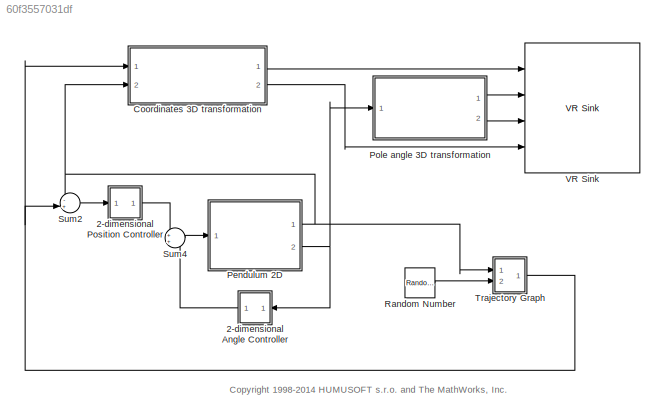
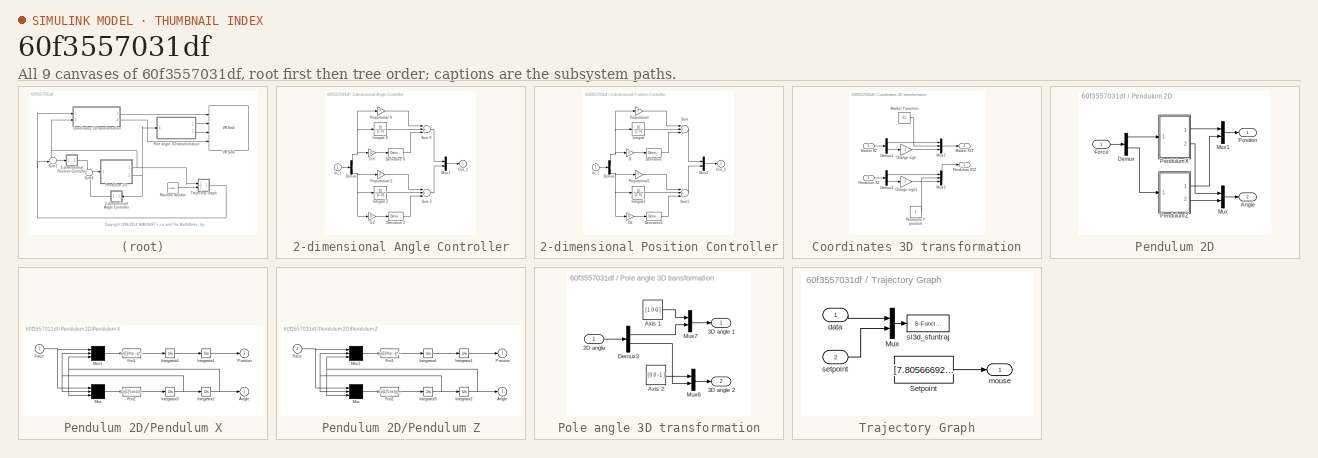
[diagram: thumbnail index - all 9 canvases of the model, root first then tree order]
MODEL slx_60f3557031df
KIND model
CONFIG AbsTol = auto
CONFIG FixedStep = 0.01
CONFIG MaxStep = 0.02
CONFIG MinStep = auto
CONFIG RelTol = 1e-3
CONFIG SampleTimeConstraint = Unconstrained
CONFIG Solver = ode5
CONFIG SolverMode = SingleTasking
CONFIG SolverName = ode5
CONFIG StartTime = 0.0
CONFIG StopTime = Inf
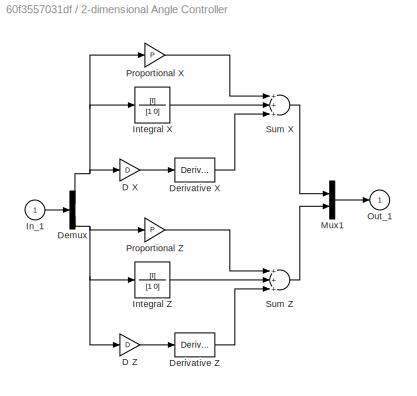
BLOCK [SubSystem] 2-dimensional Angle Controller
  Ports = [1, 1]
  RequestExecContextInheritance = off
  Variant = off
BLOCK [Gain] 2-dimensional Angle Controller/D X
  Gain = D
BLOCK [Gain] 2-dimensional Angle Controller/D Z
  Gain = D
BLOCK [Demux] 2-dimensional Angle Controller/Demux
  Outputs = 2
  Ports = [1, 2]
BLOCK [Derivative] 2-dimensional Angle Controller/Derivative X
BLOCK [Derivative] 2-dimensional Angle Controller/Derivative Z
BLOCK [Inport] 2-dimensional Angle Controller/In_1
  IconDisplay = Port number
BLOCK [TransferFcn] 2-dimensional Angle Controller/Integral X
  Denominator = [1 0]
  Numerator = [I]
BLOCK [TransferFcn] 2-dimensional Angle Controller/Integral Z
  Denominator = [1 0]
  Numerator = [I]
BLOCK [Mux] 2-dimensional Angle Controller/Mux1
  DisplayOption = bar
  Inputs = 2
  Ports = [2, 1]
BLOCK [Outport] 2-dimensional Angle Controller/Out_1
  IconDisplay = Port number
  InitialOutput = 0
BLOCK [Gain] 2-dimensional Angle Controller/Proportional X
  Gain = P
BLOCK [Gain] 2-dimensional Angle Controller/Proportional Z
  Gain = P
BLOCK [Sum] 2-dimensional Angle Controller/Sum X
  Inputs = +++
  Ports = [3, 1]
BLOCK [Sum] 2-dimensional Angle Controller/Sum Z
  Inputs = +++
  Ports = [3, 1]
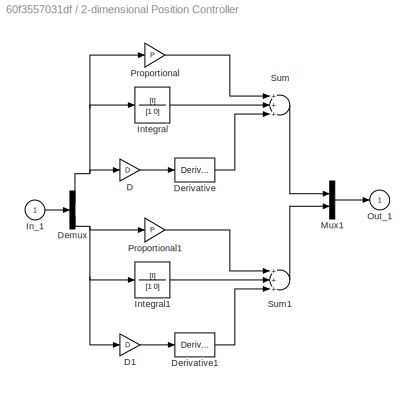
BLOCK [SubSystem] 2-dimensional Position Controller
  Ports = [1, 1]
  RequestExecContextInheritance = off
  Variant = off
BLOCK [Gain] 2-dimensional Position Controller/D
  Gain = D
BLOCK [Gain] 2-dimensional Position Controller/D1
  Gain = D
BLOCK [Demux] 2-dimensional Position Controller/Demux
  Outputs = 2
  Ports = [1, 2]
BLOCK [Derivative] 2-dimensional Position Controller/Derivative
BLOCK [Derivative] 2-dimensional Position Controller/Derivative1
BLOCK [Inport] 2-dimensional Position Controller/In_1
  IconDisplay = Port number
BLOCK [TransferFcn] 2-dimensional Position Controller/Integral
  Denominator = [1 0]
  Numerator = [I]
BLOCK [TransferFcn] 2-dimensional Position Controller/Integral1
  Denominator = [1 0]
  Numerator = [I]
BLOCK [Mux] 2-dimensional Position Controller/Mux1
  DisplayOption = bar
  Inputs = 2
  Ports = [2, 1]
BLOCK [Outport] 2-dimensional Position Controller/Out_1
  IconDisplay = Port number
  InitialOutput = 0
BLOCK [Gain] 2-dimensional Position Controller/Proportional
  Gain = P
BLOCK [Gain] 2-dimensional Position Controller/Proportional1
  Gain = P
BLOCK [Sum] 2-dimensional Position Controller/Sum
  Inputs = +++
  Ports = [3, 1]
BLOCK [Sum] 2-dimensional Position Controller/Sum1
  Inputs = +++
  Ports = [3, 1]
BLOCK [SubSystem] Coordinates 3D transformation
  Ports = [2, 2]
  RequestExecContextInheritance = off
  Variant = off
BLOCK [Gain] Coordinates 3D transformation/Change sign
  Gain = -1
  OutDataTypeStr = Inherit: Inherit via internal rule
  ParamDataTypeStr = Inherit: Inherit via internal rule
  SaturateOnIntegerOverflow = off
BLOCK [Gain] Coordinates 3D transformation/Change sign1
  Gain = -1
  OutDataTypeStr = Inherit: Inherit via internal rule
  ParamDataTypeStr = Inherit: Inherit via internal rule
  SaturateOnIntegerOverflow = off
BLOCK [Demux] Coordinates 3D transformation/Demux1
  Outputs = 2
  Ports = [1, 2]
BLOCK [Demux] Coordinates 3D transformation/Demux2
  Outputs = 2
  Ports = [1, 2]
BLOCK [Outport] Coordinates 3D transformation/Marker XYZ
  IconDisplay = Port number
  Port = 2
BLOCK [Inport] Coordinates 3D transformation/Marker XZ
  IconDisplay = Port number
BLOCK [Constant] Coordinates 3D transformation/Marker Y position
  Value = 0.5
BLOCK [Mux] Coordinates 3D transformation/Mux2
  DisplayOption = bar
  Inputs = 3
  Ports = [3, 1]
BLOCK [Mux] Coordinates 3D transformation/Mux3
  DisplayOption = bar
  Inputs = 3
  Ports = [3, 1]
BLOCK [Outport] Coordinates 3D transformation/Pendulum XYZ
  IconDisplay = Port number
BLOCK [Inport] Coordinates 3D transformation/Pendulum XZ
  IconDisplay = Port number
  Port = 2
BLOCK [Constant] Coordinates 3D transformation/Pendulum Y position
BLOCK [SubSystem] Pendulum 2D
  Ports = [1, 2]
  RequestExecContextInheritance = off
  Variant = off
BLOCK [Outport] Pendulum 2D/Angle
  IconDisplay = Port number
  Port = 2
BLOCK [Demux] Pendulum 2D/Demux
  Outputs = 2
  Ports = [1, 2]
BLOCK [Inport] Pendulum 2D/Force
  IconDisplay = Port number
BLOCK [Mux] Pendulum 2D/Mux
  DisplayOption = bar
  Inputs = 2
  Ports = [2, 1]
BLOCK [Mux] Pendulum 2D/Mux1
  DisplayOption = bar
  Inputs = 2
  Ports = [2, 1]
BLOCK [SubSystem] Pendulum 2D/Pendulum X
  Ports = [1, 2]
  RequestExecContextInheritance = off
  Variant = off
BLOCK [Outport] Pendulum 2D/Pendulum X/Angle
  IconDisplay = Port number
  InitialOutput = 0
  Port = 2
BLOCK [Fcn] Pendulum 2D/Pendulum X/Fcn1
  Expr = (u[1]/mp - g*sin(u[3])*cos(u[3]) + l*power(u[2],2)*sin(u[3]))/(mc/mp + power(sin(u[3]),2))
BLOCK [Fcn] Pendulum 2D/Pendulum X/Fcn2
  Expr = (-u[1]*cos(u[3])/mp + (mc+mp)*g*sin(u[3])/mp - l*power(u[2],2)*sin(u[3])*cos(u[3]))/(l*(mc/mp + power(sin(u[3]),2)))
BLOCK [Inport] Pendulum 2D/Pendulum X/Force
  IconDisplay = Port number
BLOCK [Integrator] Pendulum 2D/Pendulum X/Integrator1
  LowerSaturationLimit = -Inf
  Ports = [1, 1]
  UpperSaturationLimit = Inf
  ZeroCross = off
BLOCK [Integrator] Pendulum 2D/Pendulum X/Integrator2
  LimitOutput = on
  LowerSaturationLimit = -pi/2
  Ports = [1, 1]
  UpperSaturationLimit = pi/2
  ZeroCross = off
BLOCK [Integrator] Pendulum 2D/Pendulum X/Integrator3
  LowerSaturationLimit = -Inf
  Ports = [1, 1]
  UpperSaturationLimit = Inf
  ZeroCross = off
BLOCK [Integrator] Pendulum 2D/Pendulum X/Integrator4
  LowerSaturationLimit = -Inf
  Ports = [1, 1]
  UpperSaturationLimit = Inf
  ZeroCross = off
BLOCK [Mux] Pendulum 2D/Pendulum X/Mux
  Inputs = 3
  Ports = [3, 1]
BLOCK [Mux] Pendulum 2D/Pendulum X/Mux1
  Inputs = 3
  Ports = [3, 1]
BLOCK [Outport] Pendulum 2D/Pendulum X/Position
  IconDisplay = Port number
  InitialOutput = 0
BLOCK [SubSystem] Pendulum 2D/Pendulum Z
  Ports = [1, 2]
  RequestExecContextInheritance = off
  Variant = off
BLOCK [Outport] Pendulum 2D/Pendulum Z/Angle
  IconDisplay = Port number
  InitialOutput = 0
  Port = 2
BLOCK [Fcn] Pendulum 2D/Pendulum Z/Fcn1
  Expr = (u[1]/mp - g*sin(u[3])*cos(u[3]) + l*power(u[2],2)*sin(u[3]))/(mc/mp + power(sin(u[3]),2))
BLOCK [Fcn] Pendulum 2D/Pendulum Z/Fcn2
  Expr = (-u[1]*cos(u[3])/mp + (mc+mp)*g*sin(u[3])/mp - l*power(u[2],2)*sin(u[3])*cos(u[3]))/(l*(mc/mp + power(sin(u[3]),2)))
BLOCK [Inport] Pendulum 2D/Pendulum Z/Force
  IconDisplay = Port number
BLOCK [Integrator] Pendulum 2D/Pendulum Z/Integrator1
  LowerSaturationLimit = -Inf
  Ports = [1, 1]
  UpperSaturationLimit = Inf
  ZeroCross = off
BLOCK [Integrator] Pendulum 2D/Pendulum Z/Integrator2
  LimitOutput = on
  LowerSaturationLimit = -pi/2
  Ports = [1, 1]
  UpperSaturationLimit = pi/2
  ZeroCross = off
BLOCK [Integrator] Pendulum 2D/Pendulum Z/Integrator3
  LowerSaturationLimit = -Inf
  Ports = [1, 1]
  UpperSaturationLimit = Inf
  ZeroCross = off
BLOCK [Integrator] Pendulum 2D/Pendulum Z/Integrator4
  LowerSaturationLimit = -Inf
  Ports = [1, 1]
  UpperSaturationLimit = Inf
  ZeroCross = off
BLOCK [Mux] Pendulum 2D/Pendulum Z/Mux
  Inputs = 3
  Ports = [3, 1]
BLOCK [Mux] Pendulum 2D/Pendulum Z/Mux1
  Inputs = 3
  Ports = [3, 1]
BLOCK [Outport] Pendulum 2D/Pendulum Z/Position
  IconDisplay = Port number
  InitialOutput = 0
BLOCK [Outport] Pendulum 2D/Position
  IconDisplay = Port number
BLOCK [SubSystem] Pole angle 3D transformation
  Ports = [1, 2]
  RequestExecContextInheritance = off
  Variant = off
BLOCK [Inport] Pole angle 3D transformation/2D angle
  IconDisplay = Port number
BLOCK [Outport] Pole angle 3D transformation/3D angle 1
  IconDisplay = Port number
BLOCK [Outport] Pole angle 3D transformation/3D angle 2
  IconDisplay = Port number
  Port = 2
BLOCK [Constant] Pole angle 3D transformation/Axis 1
  Value = [ 1 0 0 ]
BLOCK [Constant] Pole angle 3D transformation/Axis 2
  Value = [ 0 0 -1 ]
BLOCK [Demux] Pole angle 3D transformation/Demux3
  Outputs = 2
  Ports = [1, 2]
BLOCK [Mux] Pole angle 3D transformation/Mux6
  DisplayOption = bar
  Inputs = 2
  Ports = [2, 1]
BLOCK [Mux] Pole angle 3D transformation/Mux7
  DisplayOption = bar
  Inputs = 2
  Ports = [2, 1]
BLOCK [RandomNumber] Random Number
  Mean = [0 0]
  SampleTime = 3
  Seed = [0 5]
  Variance = [5 5]
BLOCK [Sum] Sum2
  IconShape = round
  Inputs = -+
  Ports = [2, 1]
BLOCK [Sum] Sum4
  IconShape = round
  Ports = [2, 1]
BLOCK [SubSystem] Trajectory Graph
  CopyFcn = sl3d_sfuntraj([],[],[],'CopyBlock')
  DeleteFcn = sl3d_sfuntraj([],[],[],'DeleteBlock')
  LoadFcn = sl3d_sfuntraj([],[],[],'LoadBlock')
  NameChangeFcn = sl3d_sfuntraj([],[],[],'NameChange')
  Ports = [2, 1]
  RequestExecContextInheritance = off
  StartFcn = sl3d_sfuntraj([],[],[],'Start')
  StopFcn = sl3d_sfuntraj([],[],[],'Stop')
  TreatAsAtomicUnit = on
  Variant = off
BLOCK [Mux] Trajectory Graph/Mux
  DisplayOption = bar
  Inputs = 2
  Ports = [2, 1]
BLOCK [Constant] Trajectory Graph/Setpoint
  Priority = 20
  SampleTime = Ts
  Value = [7.80566692352295 -2.98038196563721]
BLOCK [Inport] Trajectory Graph/data
  IconDisplay = Port number
BLOCK [Outport] Trajectory Graph/mouse
  IconDisplay = Port number
BLOCK [Inport] Trajectory Graph/setpoint
  IconDisplay = Port number
  Port = 2
BLOCK [S-Function] Trajectory Graph/sl3d_sfuntraj
  EnableBusSupport = off
  FunctionName = sl3d_sfuntraj
  Parameters = [xmin xmax ymin ymax], Ts, mode
  Ports = [1]
  Priority = 10
  SFunctionDeploymentMode = off
BLOCK [Reference] VR Sink  REF=vrlib/VR Sink
  InstantiateOnLoad = on
  Ports = [4]
  SourceBlock = vrlib/VR Sink
  SourceType = Virtual Reality Sink
ANNOTATION (root): <copyright redacted>
LINE 2-dimensional Angle Controller/D X:1 -> 2-dimensional Angle Controller/Derivative X:1
LINE 2-dimensional Angle Controller/D Z:1 -> 2-dimensional Angle Controller/Derivative Z:1
NET 2-dimensional Angle Controller/Demux:1 -> 2-dimensional Angle Controller/D X:1, 2-dimensional Angle Controller/Integral X:1, 2-dimensional Angle Controller/Proportional X:1
NET 2-dimensional Angle Controller/Demux:2 -> 2-dimensional Angle Controller/D Z:1, 2-dimensional Angle Controller/Integral Z:1, 2-dimensional Angle Controller/Proportional Z:1
LINE 2-dimensional Angle Controller/Derivative X:1 -> 2-dimensional Angle Controller/Sum X:3
LINE 2-dimensional Angle Controller/Derivative Z:1 -> 2-dimensional Angle Controller/Sum Z:3
LINE 2-dimensional Angle Controller/In_1:1 -> 2-dimensional Angle Controller/Demux:1
LINE 2-dimensional Angle Controller/Integral X:1 -> 2-dimensional Angle Controller/Sum X:2
LINE 2-dimensional Angle Controller/Integral Z:1 -> 2-dimensional Angle Controller/Sum Z:2
LINE 2-dimensional Angle Controller/Mux1:1 -> 2-dimensional Angle Controller/Out_1:1
LINE 2-dimensional Angle Controller/Proportional X:1 -> 2-dimensional Angle Controller/Sum X:1
LINE 2-dimensional Angle Controller/Proportional Z:1 -> 2-dimensional Angle Controller/Sum Z:1
LINE 2-dimensional Angle Controller/Sum X:1 -> 2-dimensional Angle Controller/Mux1:1
LINE 2-dimensional Angle Controller/Sum Z:1 -> 2-dimensional Angle Controller/Mux1:2
LINE 2-dimensional Angle Controller:1 -> Sum4:2
LINE 2-dimensional Position Controller/D1:1 -> 2-dimensional Position Controller/Derivative1:1
LINE 2-dimensional Position Controller/D:1 -> 2-dimensional Position Controller/Derivative:1
NET 2-dimensional Position Controller/Demux:1 -> 2-dimensional Position Controller/D:1, 2-dimensional Position Controller/Integral:1, 2-dimensional Position Controller/Proportional:1
NET 2-dimensional Position Controller/Demux:2 -> 2-dimensional Position Controller/D1:1, 2-dimensional Position Controller/Integral1:1, 2-dimensional Position Controller/Proportional1:1
LINE 2-dimensional Position Controller/Derivative1:1 -> 2-dimensional Position Controller/Sum1:3
LINE 2-dimensional Position Controller/Derivative:1 -> 2-dimensional Position Controller/Sum:3
LINE 2-dimensional Position Controller/In_1:1 -> 2-dimensional Position Controller/Demux:1
LINE 2-dimensional Position Controller/Integral1:1 -> 2-dimensional Position Controller/Sum1:2
LINE 2-dimensional Position Controller/Integral:1 -> 2-dimensional Position Controller/Sum:2
LINE 2-dimensional Position Controller/Mux1:1 -> 2-dimensional Position Controller/Out_1:1
LINE 2-dimensional Position Controller/Proportional1:1 -> 2-dimensional Position Controller/Sum1:1
LINE 2-dimensional Position Controller/Proportional:1 -> 2-dimensional Position Controller/Sum:1
LINE 2-dimensional Position Controller/Sum1:1 -> 2-dimensional Position Controller/Mux1:2
LINE 2-dimensional Position Controller/Sum:1 -> 2-dimensional Position Controller/Mux1:1
LINE 2-dimensional Position Controller:1 -> Sum4:1
LINE Coordinates 3D transformation/Change sign1:1 -> Coordinates 3D transformation/Mux3:3
LINE Coordinates 3D transformation/Change sign:1 -> Coordinates 3D transformation/Mux2:3
LINE Coordinates 3D transformation/Demux1:1 -> Coordinates 3D transformation/Mux2:1
LINE Coordinates 3D transformation/Demux1:2 -> Coordinates 3D transformation/Change sign:1
LINE Coordinates 3D transformation/Demux2:1 -> Coordinates 3D transformation/Mux3:1
LINE Coordinates 3D transformation/Demux2:2 -> Coordinates 3D transformation/Change sign1:1
LINE Coordinates 3D transformation/Marker XZ:1 -> Coordinates 3D transformation/Demux1:1
LINE Coordinates 3D transformation/Marker Y position:1 -> Coordinates 3D transformation/Mux2:2
LINE Coordinates 3D transformation/Mux2:1 -> Coordinates 3D transformation/Marker XYZ:1
LINE Coordinates 3D transformation/Mux3:1 -> Coordinates 3D transformation/Pendulum XYZ:1
LINE Coordinates 3D transformation/Pendulum XZ:1 -> Coordinates 3D transformation/Demux2:1
LINE Coordinates 3D transformation/Pendulum Y position:1 -> Coordinates 3D transformation/Mux3:2
LINE Coordinates 3D transformation:1 -> VR Sink:1
LINE Coordinates 3D transformation:2 -> VR Sink:4
LINE Pendulum 2D/Demux:1 -> Pendulum 2D/Pendulum X:1
LINE Pendulum 2D/Demux:2 -> Pendulum 2D/Pendulum Z:1
LINE Pendulum 2D/Force:1 -> Pendulum 2D/Demux:1
LINE Pendulum 2D/Mux1:1 -> Pendulum 2D/Position:1
LINE Pendulum 2D/Mux:1 -> Pendulum 2D/Angle:1
LINE Pendulum 2D/Pendulum X/Fcn1:1 -> Pendulum 2D/Pendulum X/Integrator4:1
LINE Pendulum 2D/Pendulum X/Fcn2:1 -> Pendulum 2D/Pendulum X/Integrator3:1
NET Pendulum 2D/Pendulum X/Force:1 -> Pendulum 2D/Pendulum X/Mux1:1, Pendulum 2D/Pendulum X/Mux:1
LINE Pendulum 2D/Pendulum X/Integrator1:1 -> Pendulum 2D/Pendulum X/Position:1
NET Pendulum 2D/Pendulum X/Integrator2:1 -> Pendulum 2D/Pendulum X/Angle:1, Pendulum 2D/Pendulum X/Mux1:3, Pendulum 2D/Pendulum X/Mux:3
NET Pendulum 2D/Pendulum X/Integrator3:1 -> Pendulum 2D/Pendulum X/Integrator2:1, Pendulum 2D/Pendulum X/Mux1:2, Pendulum 2D/Pendulum X/Mux:2
LINE Pendulum 2D/Pendulum X/Integrator4:1 -> Pendulum 2D/Pendulum X/Integrator1:1
LINE Pendulum 2D/Pendulum X/Mux1:1 -> Pendulum 2D/Pendulum X/Fcn1:1
LINE Pendulum 2D/Pendulum X/Mux:1 -> Pendulum 2D/Pendulum X/Fcn2:1
LINE Pendulum 2D/Pendulum X:1 -> Pendulum 2D/Mux1:1
LINE Pendulum 2D/Pendulum X:2 -> Pendulum 2D/Mux:1
LINE Pendulum 2D/Pendulum Z/Fcn1:1 -> Pendulum 2D/Pendulum Z/Integrator4:1
LINE Pendulum 2D/Pendulum Z/Fcn2:1 -> Pendulum 2D/Pendulum Z/Integrator3:1
NET Pendulum 2D/Pendulum Z/Force:1 -> Pendulum 2D/Pendulum Z/Mux1:1, Pendulum 2D/Pendulum Z/Mux:1
LINE Pendulum 2D/Pendulum Z/Integrator1:1 -> Pendulum 2D/Pendulum Z/Position:1
NET Pendulum 2D/Pendulum Z/Integrator2:1 -> Pendulum 2D/Pendulum Z/Angle:1, Pendulum 2D/Pendulum Z/Mux1:3, Pendulum 2D/Pendulum Z/Mux:3
NET Pendulum 2D/Pendulum Z/Integrator3:1 -> Pendulum 2D/Pendulum Z/Integrator2:1, Pendulum 2D/Pendulum Z/Mux1:2, Pendulum 2D/Pendulum Z/Mux:2
LINE Pendulum 2D/Pendulum Z/Integrator4:1 -> Pendulum 2D/Pendulum Z/Integrator1:1
LINE Pendulum 2D/Pendulum Z/Mux1:1 -> Pendulum 2D/Pendulum Z/Fcn1:1
LINE Pendulum 2D/Pendulum Z/Mux:1 -> Pendulum 2D/Pendulum Z/Fcn2:1
LINE Pendulum 2D/Pendulum Z:1 -> Pendulum 2D/Mux1:2
LINE Pendulum 2D/Pendulum Z:2 -> Pendulum 2D/Mux:2
NET Pendulum 2D:1 -> Coordinates 3D transformation:2, Sum2:1, Trajectory Graph:1
NET Pendulum 2D:2 -> 2-dimensional Angle Controller:1, Pole angle 3D transformation:1
LINE Pole angle 3D transformation/2D angle:1 -> Pole angle 3D transformation/Demux3:1
LINE Pole angle 3D transformation/Axis 1:1 -> Pole angle 3D transformation/Mux7:1
LINE Pole angle 3D transformation/Axis 2:1 -> Pole angle 3D transformation/Mux6:1
LINE Pole angle 3D transformation/Demux3:1 -> Pole angle 3D transformation/Mux7:2
LINE Pole angle 3D transformation/Demux3:2 -> Pole angle 3D transformation/Mux6:2
LINE Pole angle 3D transformation/Mux6:1 -> Pole angle 3D transformation/3D angle 2:1
LINE Pole angle 3D transformation/Mux7:1 -> Pole angle 3D transformation/3D angle 1:1
LINE Pole angle 3D transformation:1 -> VR Sink:2
LINE Pole angle 3D transformation:2 -> VR Sink:3
LINE Random Number:1 -> Trajectory Graph:2
LINE Sum2:1 -> 2-dimensional Position Controller:1
LINE Sum4:1 -> Pendulum 2D:1
NET Trajectory Graph:1 -> Coordinates 3D transformation:1, Sum2:2
note: NET lines group one-source signal fan-out (src -> all destinations, sorted); 1:1 wires keep LINE
